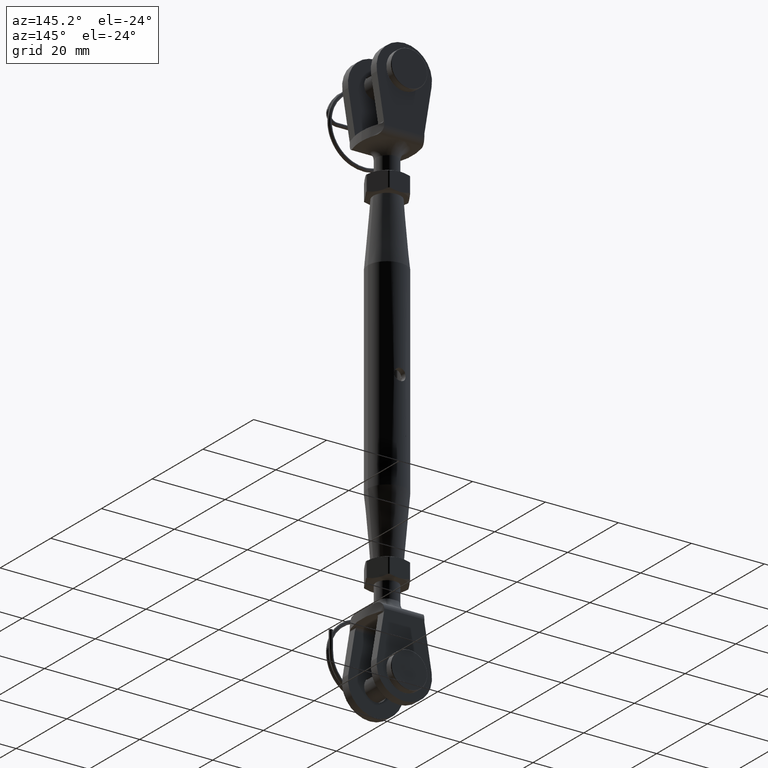
[diagram: clean part render]
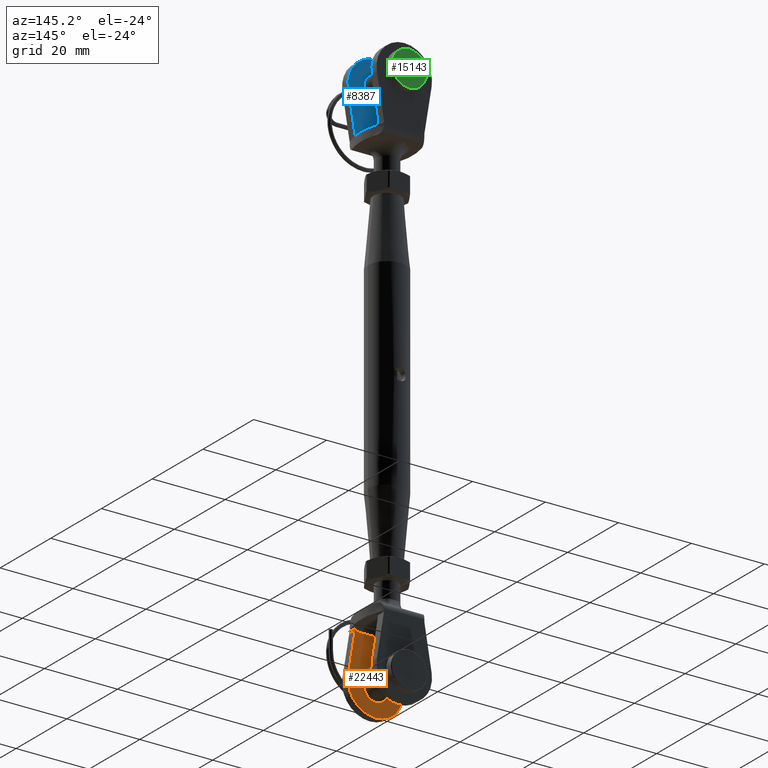
[diagram: same view with three faces highlighted in distinct colors, each labeled with its STEP entity id]
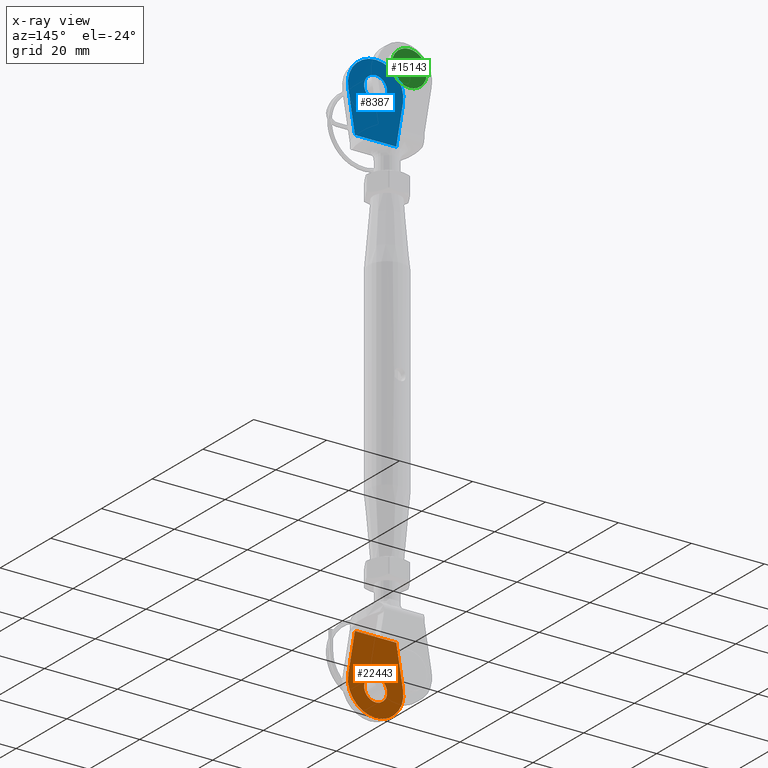
[diagram: x-ray of the same camera — body ghosted, the three highlighted faces saturated]
A machine part, auxiliary view with three faces highlighted in distinct colors.
The next image is the same camera in x-ray (body ghosted, the three faces saturated) — at least one of them is partly hidden behind the body in this view.
Their STEP definitions:

[orange] entity #22443 — the highlighted planar face has unit normal (0, 1, 0).
#21 = EDGE_CURVE ( 'NONE', #29255, #27036, #17387, .T. ) ;
#617 = AXIS2_PLACEMENT_3D ( 'NONE', #13839, #4652, #27425 ) ;
#2267 = ORIENTED_EDGE ( 'NONE', *, *, #17048, .F. ) ;
#2856 = CARTESIAN_POINT ( 'NONE',  ( 1.130487037125803700E-015, -4.500000000000000000, 13.39933939019660000 ) ) ;
#4514 = CARTESIAN_POINT ( 'NONE',  ( 5.500000000000000000, -4.500000000000000000, 1.072106486019803700E-015 ) ) ;
#4536 = CIRCLE ( 'NONE', #8373, 7.600660609803402900 ) ;
#4604 = VECTOR ( 'NONE', #15463, 1000.000000000000000 ) ;
#4642 = DIRECTION ( 'NONE',  ( -0.1622095469790640300, 0.0000000000000000000, 0.9867563340910696600 ) ) ;
#4652 = DIRECTION ( 'NONE',  ( 0.0000000000000000000, 1.000000000000000000, 0.0000000000000000000 ) ) ;
#5587 = VECTOR ( 'NONE', #22639, 1000.000000000000100 ) ;
#6291 = EDGE_CURVE ( 'NONE', #20584, #16415, #15841, .T. ) ;
#7174 = DIRECTION ( 'NONE',  ( 0.0000000000000000000, 0.0000000000000000000, -1.000000000000000000 ) ) ;
#7572 = DIRECTION ( 'NONE',  ( 0.0000000000000000000, 0.0000000000000000000, 1.000000000000000000 ) ) ;
#7726 = ORIENTED_EDGE ( 'NONE', *, *, #25082, .T. ) ;
#7753 = CARTESIAN_POINT ( 'NONE',  ( 0.0000000000000000000, -4.500000000000000000, 17.15000000000000200 ) ) ;
#8368 = EDGE_CURVE ( 'NONE', #10783, #20584, #4536, .T. ) ;
#8373 = AXIS2_PLACEMENT_3D ( 'NONE', #27371, #11391, #7174 ) ;
#9761 = LINE ( 'NONE', #15803, #19318 ) ;
#9817 = ORIENTED_EDGE ( 'NONE', *, *, #6291, .T. ) ;
#9872 = EDGE_CURVE ( 'NONE', #16415, #18516, #25862, .T. ) ;
#10472 = CARTESIAN_POINT ( 'NONE',  ( -5.664386628567709400, -4.500000000000000000, 0.9999999999999991100 ) ) ;
#10783 = VERTEX_POINT ( 'NONE', #28500 ) ;
#11090 = CARTESIAN_POINT ( 'NONE',  ( -7.500000000000000000, -4.500000000000000000, 12.16643967593877700 ) ) ;
#11355 = CIRCLE ( 'NONE', #21396, 7.600660609803402900 ) ;
#11391 = DIRECTION ( 'NONE',  ( -0.0000000000000000000, 1.000000000000000000, -0.0000000000000000000 ) ) ;
#11633 = CARTESIAN_POINT ( 'NONE',  ( 5.664386628567709400, -4.500000000000000000, 0.9999999999999985600 ) ) ;
#11660 = EDGE_LOOP ( 'NONE', ( #9817, #13148, #25936, #7726, #14143 ) ) ;
#12077 = DIRECTION ( 'NONE',  ( 0.0000000000000000000, 1.000000000000000000, 0.0000000000000000000 ) ) ;
#12805 = FACE_OUTER_BOUND ( 'NONE', #11660, .T. ) ;
#13148 = ORIENTED_EDGE ( 'NONE', *, *, #9872, .T. ) ;
#13757 = CARTESIAN_POINT ( 'NONE',  ( 1.130487037125803700E-015, -4.500000000000000000, 13.39933939019660000 ) ) ;
#13839 = CARTESIAN_POINT ( 'NONE',  ( 0.0000000000000000000, -4.500000000000000000, 14.00000000000000000 ) ) ;
#14143 = ORIENTED_EDGE ( 'NONE', *, *, #8368, .T. ) ;
#14490 = CARTESIAN_POINT ( 'NONE',  ( 7.500000000000001800, -4.500000000000000000, 12.16643967593877400 ) ) ;
#14654 = EDGE_LOOP ( 'NONE', ( #27462, #2267 ) ) ;
#15463 = DIRECTION ( 'NONE',  ( -1.000000000000000000, 0.0000000000000000000, 1.224646799147353200E-016 ) ) ;
#15803 = CARTESIAN_POINT ( 'NONE',  ( -7.499999999999999100, -4.500000000000000000, 12.16643967593877400 ) ) ;
#15841 = LINE ( 'NONE', #4514, #5587 ) ;
#16089 = EDGE_CURVE ( 'NONE', #18516, #18235, #9761, .T. ) ;
#16335 = CARTESIAN_POINT ( 'NONE',  ( 3.857637417314164200E-016, -4.500000000000000000, 10.84999999999999800 ) ) ;
#16355 = CARTESIAN_POINT ( 'NONE',  ( 0.0000000000000000000, -4.500000000000000000, 14.00000000000000000 ) ) ;
#16415 = VERTEX_POINT ( 'NONE', #11633 ) ;
#17048 = EDGE_CURVE ( 'NONE', #27036, #29255, #28179, .T. ) ;
#17387 = CIRCLE ( 'NONE', #617, 3.150000000000001700 ) ;
#18235 = VERTEX_POINT ( 'NONE', #11090 ) ;
#18401 = DIRECTION ( 'NONE',  ( 0.0000000000000000000, 1.000000000000000000, 0.0000000000000000000 ) ) ;
#18516 = VERTEX_POINT ( 'NONE', #10472 ) ;
#18666 = DIRECTION ( 'NONE',  ( -0.0000000000000000000, 1.000000000000000000, -0.0000000000000000000 ) ) ;
#19318 = VECTOR ( 'NONE', #4642, 1000.000000000000100 ) ;
#20584 = VERTEX_POINT ( 'NONE', #14490 ) ;
#21396 = AXIS2_PLACEMENT_3D ( 'NONE', #2856, #18666, #28489 ) ;
#21700 = AXIS2_PLACEMENT_3D ( 'NONE', #16355, #12077, #7572 ) ;
#22022 = CARTESIAN_POINT ( 'NONE',  ( -3.879940924487923500E-016, -4.500000000000000000, 0.9999999999999991100 ) ) ;
#22443 = ADVANCED_FACE ( 'NONE', ( #25933, #12805 ), #27730, .T. ) ;
#22639 = DIRECTION ( 'NONE',  ( -0.1622095469790642300, 0.0000000000000000000, -0.9867563340910696600 ) ) ;
#24810 = AXIS2_PLACEMENT_3D ( 'NONE', #13757, #18401, #25464 ) ;
#25082 = EDGE_CURVE ( 'NONE', #18235, #10783, #11355, .T. ) ;
#25464 = DIRECTION ( 'NONE',  ( 0.0000000000000000000, 0.0000000000000000000, -1.000000000000000000 ) ) ;
#25862 = LINE ( 'NONE', #22022, #4604 ) ;
#25933 = FACE_BOUND ( 'NONE', #14654, .T. ) ;
#25936 = ORIENTED_EDGE ( 'NONE', *, *, #16089, .T. ) ;
#27036 = VERTEX_POINT ( 'NONE', #16335 ) ;
#27371 = CARTESIAN_POINT ( 'NONE',  ( 1.130487037125803700E-015, -4.500000000000000000, 13.39933939019660000 ) ) ;
#27425 = DIRECTION ( 'NONE',  ( 0.0000000000000000000, 0.0000000000000000000, 1.000000000000000000 ) ) ;
#27462 = ORIENTED_EDGE ( 'NONE', *, *, #21, .F. ) ;
#27730 = PLANE ( 'NONE',  #24810 ) ;
#28179 = CIRCLE ( 'NONE', #21700, 3.150000000000001700 ) ;
#28489 = DIRECTION ( 'NONE',  ( 0.0000000000000000000, 0.0000000000000000000, -1.000000000000000000 ) ) ;
#28500 = CARTESIAN_POINT ( 'NONE',  ( 1.130487037125803700E-015, -4.500000000000000000, 21.00000000000000400 ) ) ;
#29255 = VERTEX_POINT ( 'NONE', #7753 ) ;

[blue] entity #8387 — the highlighted planar face has unit normal (0, 1, 0).
#380 = DIRECTION ( 'NONE',  ( -0.1622095469790642000, 0.0000000000000000000, -0.9867563340910696600 ) ) ;
#448 = EDGE_CURVE ( 'NONE', #23084, #5084, #5006, .T. ) ;
#626 = CARTESIAN_POINT ( 'NONE',  ( -7.499999999999999100, -4.500000000000000000, 12.16643967593877200 ) ) ;
#877 = CARTESIAN_POINT ( 'NONE',  ( -7.500000000000000000, -4.500000000000000000, 12.16643967593877400 ) ) ;
#1617 = DIRECTION ( 'NONE',  ( -0.0000000000000000000, 1.000000000000000000, -0.0000000000000000000 ) ) ;
#1756 = DIRECTION ( 'NONE',  ( 0.0000000000000000000, 0.0000000000000000000, -1.000000000000000000 ) ) ;
#2232 = CARTESIAN_POINT ( 'NONE',  ( 6.944473539419721200E-016, -4.500000000000000000, 20.99999999999999600 ) ) ;
#3077 = AXIS2_PLACEMENT_3D ( 'NONE', #11859, #18511, #27743 ) ;
#3117 = ORIENTED_EDGE ( 'NONE', *, *, #3247, .T. ) ;
#3247 = EDGE_CURVE ( 'NONE', #24637, #14567, #17302, .T. ) ;
#3972 = DIRECTION ( 'NONE',  ( 0.0000000000000000000, 0.0000000000000000000, -1.000000000000000000 ) ) ;
#4213 = PLANE ( 'NONE',  #26012 ) ;
#4737 = CIRCLE ( 'NONE', #19655, 3.150000000000001700 ) ;
#4792 = CARTESIAN_POINT ( 'NONE',  ( 6.944473539419721200E-016, -4.500000000000000000, 13.39933939019659600 ) ) ;
#4868 = DIRECTION ( 'NONE',  ( -0.1622095469790640300, 0.0000000000000000000, 0.9867563340910696600 ) ) ;
#5006 = CIRCLE ( 'NONE', #3077, 3.150000000000001700 ) ;
#5084 = VERTEX_POINT ( 'NONE', #29133 ) ;
#6262 = VERTEX_POINT ( 'NONE', #24831 ) ;
#6698 = CIRCLE ( 'NONE', #17655, 7.600660609803402900 ) ;
#6940 = ORIENTED_EDGE ( 'NONE', *, *, #16781, .T. ) ;
#7056 = ORIENTED_EDGE ( 'NONE', *, *, #11748, .T. ) ;
#7083 = DIRECTION ( 'NONE',  ( 0.0000000000000000000, 1.000000000000000000, 0.0000000000000000000 ) ) ;
#8387 = ADVANCED_FACE ( 'NONE', ( #19764, #13013 ), #4213, .T. ) ;
#8558 = VECTOR ( 'NONE', #4868, 1000.000000000000200 ) ;
#8861 = EDGE_LOOP ( 'NONE', ( #19365, #9374 ) ) ;
#9374 = ORIENTED_EDGE ( 'NONE', *, *, #20811, .F. ) ;
#9979 = VERTEX_POINT ( 'NONE', #24516 ) ;
#10810 = DIRECTION ( 'NONE',  ( 0.0000000000000000000, 1.000000000000000000, 0.0000000000000000000 ) ) ;
#11118 = CARTESIAN_POINT ( 'NONE',  ( -8.240337756326235600E-016, -4.500000000000000000, 0.9999999999999991100 ) ) ;
#11748 = EDGE_CURVE ( 'NONE', #14567, #9979, #6698, .T. ) ;
#11859 = CARTESIAN_POINT ( 'NONE',  ( 0.0000000000000000000, -4.500000000000000000, 14.00000000000000000 ) ) ;
#11941 = CARTESIAN_POINT ( 'NONE',  ( 0.0000000000000000000, -4.500000000000000000, 17.15000000000000200 ) ) ;
#12216 = LINE ( 'NONE', #11118, #29264 ) ;
#13013 = FACE_OUTER_BOUND ( 'NONE', #16440, .T. ) ;
#13311 = DIRECTION ( 'NONE',  ( -1.000000000000000000, 0.0000000000000000000, 1.224646799147353200E-016 ) ) ;
#14567 = VERTEX_POINT ( 'NONE', #2232 ) ;
#14842 = AXIS2_PLACEMENT_3D ( 'NONE', #17941, #26810, #1756 ) ;
#15354 = DIRECTION ( 'NONE',  ( 0.0000000000000000000, 0.0000000000000000000, 1.000000000000000000 ) ) ;
#15630 = VECTOR ( 'NONE', #380, 1000.000000000000200 ) ;
#16440 = EDGE_LOOP ( 'NONE', ( #19766, #6940, #20358, #3117, #7056 ) ) ;
#16781 = EDGE_CURVE ( 'NONE', #6262, #28178, #12216, .T. ) ;
#17302 = CIRCLE ( 'NONE', #14842, 7.600660609803402900 ) ;
#17655 = AXIS2_PLACEMENT_3D ( 'NONE', #21896, #1617, #3972 ) ;
#17941 = CARTESIAN_POINT ( 'NONE',  ( 6.944473539419721200E-016, -4.500000000000000000, 13.39933939019659600 ) ) ;
#18511 = DIRECTION ( 'NONE',  ( 0.0000000000000000000, 1.000000000000000000, 0.0000000000000000000 ) ) ;
#19365 = ORIENTED_EDGE ( 'NONE', *, *, #448, .F. ) ;
#19655 = AXIS2_PLACEMENT_3D ( 'NONE', #24409, #10810, #15354 ) ;
#19764 = FACE_BOUND ( 'NONE', #8861, .T. ) ;
#19766 = ORIENTED_EDGE ( 'NONE', *, *, #24862, .T. ) ;
#20358 = ORIENTED_EDGE ( 'NONE', *, *, #23975, .T. ) ;
#20811 = EDGE_CURVE ( 'NONE', #5084, #23084, #4737, .T. ) ;
#21896 = CARTESIAN_POINT ( 'NONE',  ( 6.944473539419721200E-016, -4.500000000000000000, 13.39933939019659600 ) ) ;
#22622 = DIRECTION ( 'NONE',  ( 0.0000000000000000000, 0.0000000000000000000, -1.000000000000000000 ) ) ;
#23084 = VERTEX_POINT ( 'NONE', #11941 ) ;
#23975 = EDGE_CURVE ( 'NONE', #28178, #24637, #25217, .T. ) ;
#24409 = CARTESIAN_POINT ( 'NONE',  ( 0.0000000000000000000, -4.500000000000000000, 14.00000000000000000 ) ) ;
#24516 = CARTESIAN_POINT ( 'NONE',  ( 7.500000000000000900, -4.500000000000000000, 12.16643967593877000 ) ) ;
#24637 = VERTEX_POINT ( 'NONE', #877 ) ;
#24831 = CARTESIAN_POINT ( 'NONE',  ( 5.664386628567709400, -4.500000000000000000, 0.9999999999999983300 ) ) ;
#24862 = EDGE_CURVE ( 'NONE', #9979, #6262, #27018, .T. ) ;
#25217 = LINE ( 'NONE', #626, #8558 ) ;
#25422 = CARTESIAN_POINT ( 'NONE',  ( -5.664386628567709400, -4.500000000000000000, 1.000000000000000900 ) ) ;
#26012 = AXIS2_PLACEMENT_3D ( 'NONE', #4792, #7083, #22622 ) ;
#26810 = DIRECTION ( 'NONE',  ( -0.0000000000000000000, 1.000000000000000000, -0.0000000000000000000 ) ) ;
#27018 = LINE ( 'NONE', #29077, #15630 ) ;
#27743 = DIRECTION ( 'NONE',  ( 0.0000000000000000000, 0.0000000000000000000, 1.000000000000000000 ) ) ;
#28178 = VERTEX_POINT ( 'NONE', #25422 ) ;
#29077 = CARTESIAN_POINT ( 'NONE',  ( 5.500000000000000000, -4.500000000000000000, 1.580774923414643100E-015 ) ) ;
#29133 = CARTESIAN_POINT ( 'NONE',  ( 3.857637417314164200E-016, -4.500000000000000000, 10.84999999999999800 ) ) ;
#29264 = VECTOR ( 'NONE', #13311, 1000.000000000000000 ) ;

[green] entity #15143 — the highlighted planar face has unit normal (0, 1, -0).
#65 = DIRECTION ( 'NONE',  ( 0.0000000000000000000, 0.0000000000000000000, -1.000000000000000000 ) ) ;
#1010 = VERTEX_POINT ( 'NONE', #16557 ) ;
#1543 = CARTESIAN_POINT ( 'NONE',  ( 5.000000000000000000, -1.836970198721029700E-016, 0.0000000000000000000 ) ) ;
#2251 = EDGE_CURVE ( 'NONE', #4400, #1010, #11329, .T. ) ;
#3267 = AXIS2_PLACEMENT_3D ( 'NONE', #1543, #28855, #12781 ) ;
#4400 = VERTEX_POINT ( 'NONE', #15077 ) ;
#4417 = AXIS2_PLACEMENT_3D ( 'NONE', #6384, #22504, #13273 ) ;
#6384 = CARTESIAN_POINT ( 'NONE',  ( 0.0000000000000000000, -1.897353801849632800E-016, 0.0000000000000000000 ) ) ;
#7697 = FACE_OUTER_BOUND ( 'NONE', #8690, .T. ) ;
#8112 = ORIENTED_EDGE ( 'NONE', *, *, #10036, .T. ) ;
#8163 = CIRCLE ( 'NONE', #20310, 4.800000000000000700 ) ;
#8690 = EDGE_LOOP ( 'NONE', ( #13503, #8112 ) ) ;
#10036 = EDGE_CURVE ( 'NONE', #1010, #4400, #8163, .T. ) ;
#11097 = DIRECTION ( 'NONE',  ( -0.0000000000000000000, -1.000000000000000000, -0.0000000000000000000 ) ) ;
#11329 = CIRCLE ( 'NONE', #4417, 4.800000000000000700 ) ;
#12781 = DIRECTION ( 'NONE',  ( 0.0000000000000000000, 0.0000000000000000000, -1.000000000000000000 ) ) ;
#12986 = PLANE ( 'NONE',  #3267 ) ;
#13273 = DIRECTION ( 'NONE',  ( 0.0000000000000000000, 0.0000000000000000000, -1.000000000000000000 ) ) ;
#13503 = ORIENTED_EDGE ( 'NONE', *, *, #2251, .T. ) ;
#15077 = CARTESIAN_POINT ( 'NONE',  ( 0.0000000000000000000, -1.897353801849632800E-016, -4.800000000000000700 ) ) ;
#15143 = ADVANCED_FACE ( 'NONE', ( #7697 ), #12986, .T. ) ;
#16557 = CARTESIAN_POINT ( 'NONE',  ( 6.000769315822031700E-016, -1.897353801849632800E-016, 4.800000000000000700 ) ) ;
#20310 = AXIS2_PLACEMENT_3D ( 'NONE', #29156, #11097, #65 ) ;
#22504 = DIRECTION ( 'NONE',  ( -0.0000000000000000000, -1.000000000000000000, -0.0000000000000000000 ) ) ;
#28855 = DIRECTION ( 'NONE',  ( 0.0000000000000000000, -1.000000000000000000, -0.0000000000000000000 ) ) ;
#29156 = CARTESIAN_POINT ( 'NONE',  ( 0.0000000000000000000, -1.897353801849632800E-016, 0.0000000000000000000 ) ) ;